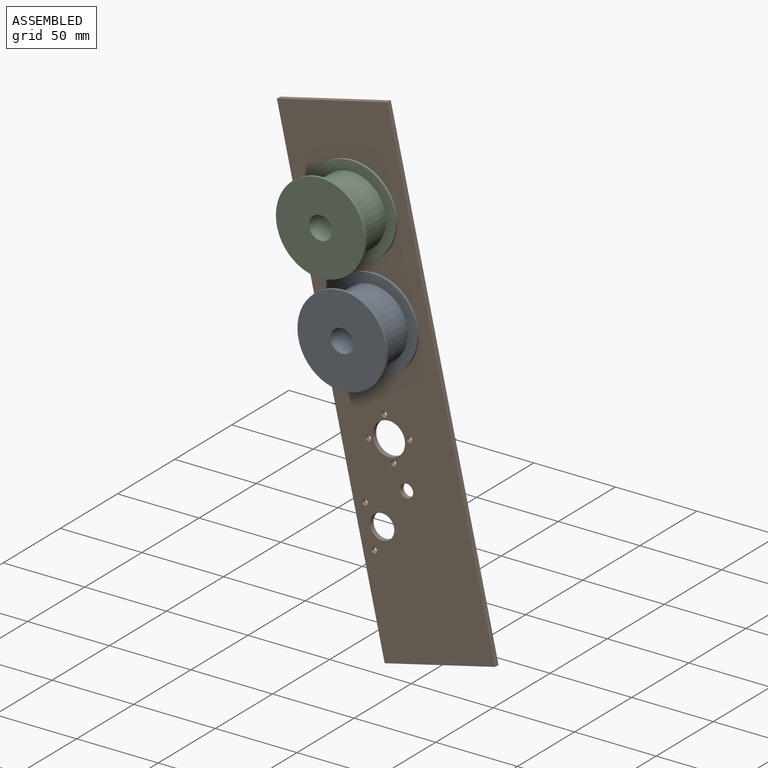
[diagram: assembled view]
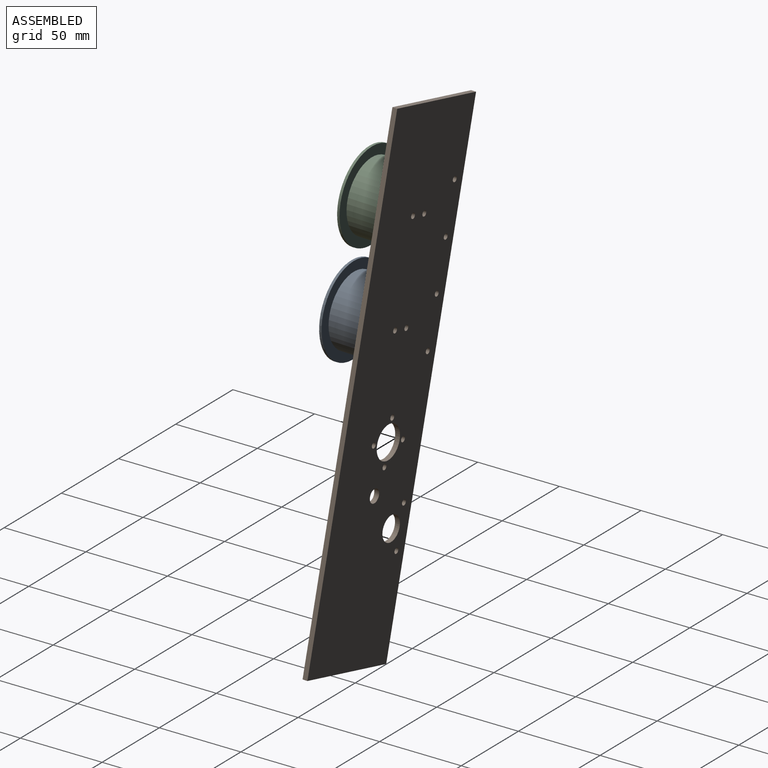
[diagram: assembled view, second angle]
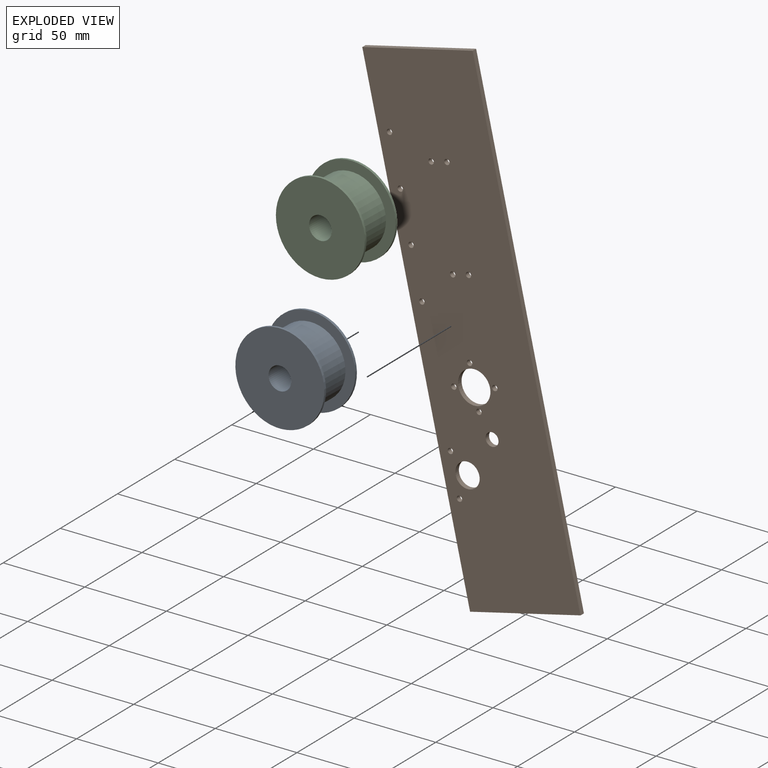
[diagram: exploded view]
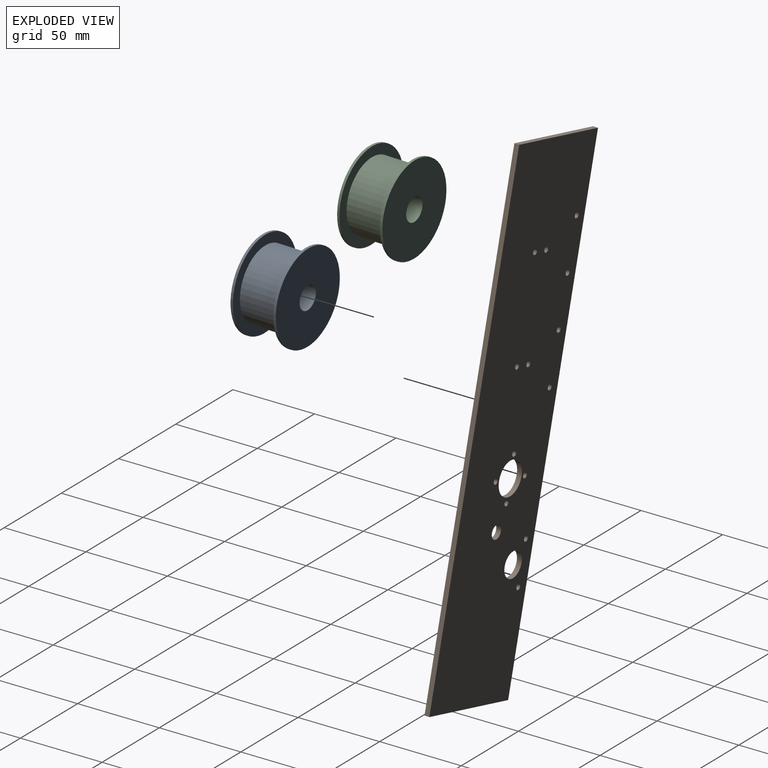
[diagram: exploded view, second angle]
ASSEMBLY  parts=3 mates=2
PART A: 8 faces, bbox 55x28x55 mm
  f0: cylinder r=27.5mm len=55mm, axis (0,1,0), area 259.2mm2, adj f1,f4
  f1: plane 55x55mm, normal (0,1,0), area 2221.9mm2, adj f0,f7
  f2: plane 55x55mm, normal (0,1,0), area 923.6mm2, adj f3,f6
  f3: cylinder r=21.5mm len=43mm, axis (0,1,0), area 3377.2mm2, adj f2,f4
  f4: plane 55x55mm, normal (0,-1,0), area 923.6mm2, adj f0,f3
  f5: plane 55x55mm, normal (0,-1,0), area 2221.9mm2, adj f6,f7
  f6: cylinder r=27.5mm len=55mm, axis (0,1,0), area 259.2mm2, adj f2,f5
  f7: cylinder r=7mm len=28mm, axis (0,1,0), area 1231.5mm2, adj f1,f5
PART B: 23 faces, bbox 300x3x70 mm
  f0: plane 300x3mm, normal (0,0,1), area 900mm2, adj f1,f3,f4,f5
  f1: plane 70x3mm, normal (-1,0,0), area 210mm2, adj f0,f2,f4,f5
  f2: plane 300x3mm, normal (0,0,-1), area 900mm2, adj f1,f3,f4,f5
  f3: plane 70x3mm, normal (1,0,0), area 210mm2, adj f0,f2,f4,f5
  f4: plane 300x70mm, normal (0,-1,0), area 20339.1mm2, adj f0,f1,f2,f3,f6,f7,f8,f9
  f5: plane 300x70mm, normal (0,1,0), area 20339.1mm2, adj f0,f1,f2,f3,f6,f7,f8,f9
  f6: cylinder r=1.65mm len=3.3mm, axis (0,-1,0), area 31.1mm2, adj f4,f5
  f7: cylinder r=1.65mm len=3.3mm, axis (0,-1,0), area 31.1mm2, adj f4,f5
  f8: cylinder r=1.65mm len=3.3mm, axis (0,-1,0), area 31.1mm2, adj f4,f5
  f9: cylinder r=1.65mm len=3.3mm, axis (0,-1,0), area 31.1mm2, adj f4,f5
  f10: cylinder r=1.65mm len=3.3mm, axis (0,-1,0), area 31.1mm2, adj f4,f5
  f11: cylinder r=1.65mm len=3.3mm, axis (0,-1,0), area 31.1mm2, adj f4,f5
  f12: cylinder r=1.65mm len=3.3mm, axis (0,-1,0), area 31.1mm2, adj f4,f5
  f13: cylinder r=1.65mm len=3.3mm, axis (0,-1,0), area 31.1mm2, adj f4,f5
  f14: cylinder r=10mm len=20mm, axis (0,-1,0), area 188.5mm2, adj f4,f5
  f15: cylinder r=7.5mm len=15mm, axis (0,-1,0), area 141.4mm2, adj f4,f5
  f16: cylinder r=4mm len=8mm, axis (0,-1,0), area 75.4mm2, adj f4,f5
  f17: cylinder r=1.65mm len=3.3mm, axis (0,-1,0), area 31.1mm2, adj f4,f5
  f18: cylinder r=1.65mm len=3.3mm, axis (0,-1,0), area 31.1mm2, adj f4,f5
  f19: cylinder r=1.65mm len=3.3mm, axis (0,-1,0), area 31.1mm2, adj f4,f5
  f20: cylinder r=1.65mm len=3.3mm, axis (0,-1,0), area 31.1mm2, adj f4,f5
  f21: cylinder r=1.65mm len=3.3mm, axis (0,-1,0), area 31.1mm2, adj f4,f5
  f22: cylinder r=1.65mm len=3.3mm, axis (0,-1,0), area 31.1mm2, adj f4,f5
PART C: same geometry as A
PLACE A rot(axis=(0,1,-0.01),117.3deg) t=(-76.99,6.4,-16.35)mm
PLACE B rot(axis=(0,1,-0.02),76.5deg) t=(-138.6,12.03,90.2)mm
PLACE C rot(axis=(-0.04,-1,-0.02),30.7deg) t=(-91.02,7.58,41.97)mm
MATE planar B.f4 <-> A.f0  axis (-0.01,-1,0.02) through (-69.49,5.79,-46.13)mm
MATE planar C.f0 <-> B.f6  axis (0.01,1,-0.02) through (-91.02,7.58,41.97)mm
